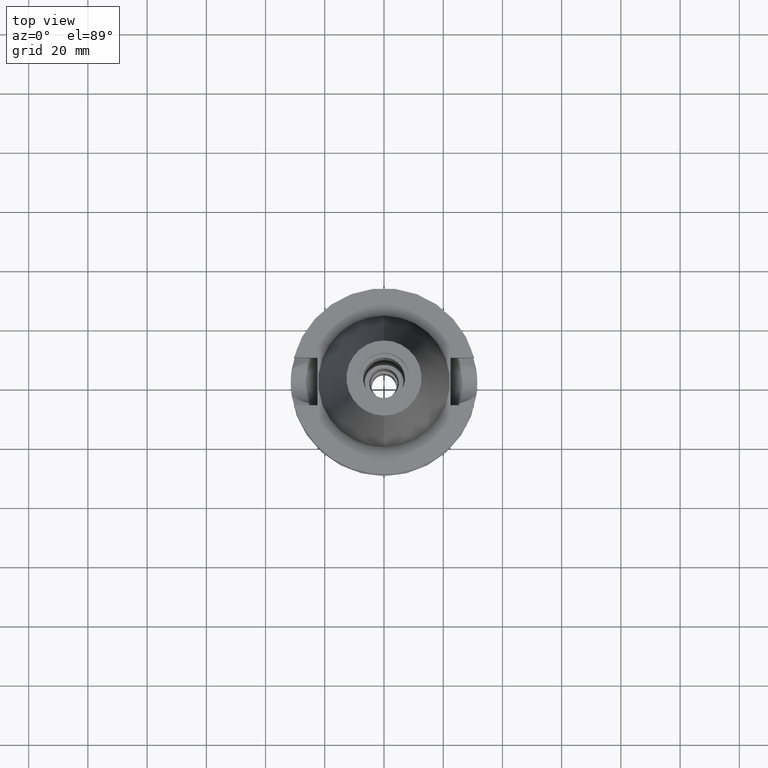
[diagram: clean part render]
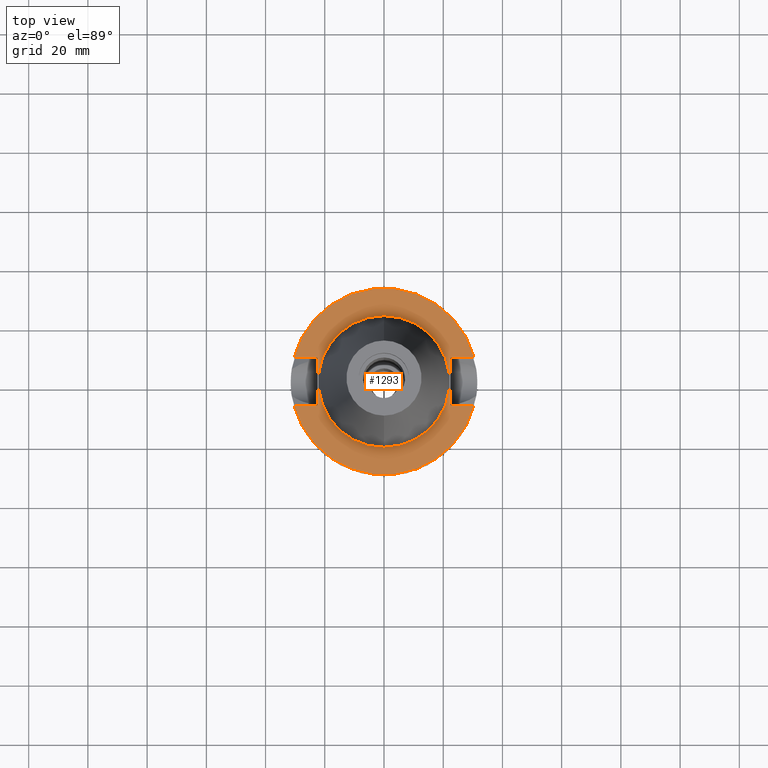
[diagram: same view with one face highlighted and labeled with its STEP entity id]
A machine part, top view. The second image highlights one B-rep face of the part: STEP entity #1293.
In plain terms, the highlighted planar face has unit normal (0, 0, -1).
Its self-contained STEP definition (entity closure, byte-faithful):
#74 = CARTESIAN_POINT ( 'NONE',  ( 30.45402272279000044, -8.050000000000000711, -1.000000000000000000 ) ) ;
#84 = DIRECTION ( 'NONE',  ( -1.000000000000000000, -3.550916904668000126E-14, 0.0000000000000000000 ) ) ;
#104 = ORIENTED_EDGE ( 'NONE', *, *, #813, .F. ) ;
#112 = VECTOR ( 'NONE', #84, 1000.000000000000000 ) ;
#217 = VECTOR ( 'NONE', #1384, 1000.000000000000000 ) ;
#222 = EDGE_CURVE ( 'NONE', #1713, #2828, #845, .T. ) ;
#296 = LINE ( 'NONE', #1276, #1499 ) ;
#337 = DIRECTION ( 'NONE',  ( 0.0000000000000000000, 0.0000000000000000000, -1.000000000000000000 ) ) ;
#346 = CARTESIAN_POINT ( 'NONE',  ( 30.45402272279000044, 8.050000000000000711, -1.000000000000000000 ) ) ;
#350 = FACE_OUTER_BOUND ( 'NONE', #1107, .T. ) ;
#358 = ORIENTED_EDGE ( 'NONE', *, *, #454, .T. ) ;
#375 = ORIENTED_EDGE ( 'NONE', *, *, #1545, .T. ) ;
#382 = DIRECTION ( 'NONE',  ( 0.0000000000000000000, 0.0000000000000000000, 1.000000000000000000 ) ) ;
#403 = CARTESIAN_POINT ( 'NONE',  ( -22.50000000000000000, -8.050000000000000711, -1.000000000000000000 ) ) ;
#445 = ORIENTED_EDGE ( 'NONE', *, *, #2164, .F. ) ;
#454 = EDGE_CURVE ( 'NONE', #3036, #1838, #296, .T. ) ;
#461 = DIRECTION ( 'NONE',  ( 0.0000000000000000000, 1.000000000000000000, 0.0000000000000000000 ) ) ;
#475 = EDGE_CURVE ( 'NONE', #2958, #3025, #2818, .T. ) ;
#562 = ORIENTED_EDGE ( 'NONE', *, *, #1919, .F. ) ;
#635 = CARTESIAN_POINT ( 'NONE',  ( 0.0000000000000000000, 2.162542550273999956E-14, -1.000000000000000000 ) ) ;
#692 = CARTESIAN_POINT ( 'NONE',  ( 0.0000000000000000000, 22.22500000000000142, -1.000000000000000000 ) ) ;
#785 = CIRCLE ( 'NONE', #1901, 22.22500000000000142 ) ;
#813 = EDGE_CURVE ( 'NONE', #2828, #2980, #2250, .T. ) ;
#845 = LINE ( 'NONE', #2777, #1752 ) ;
#851 = DIRECTION ( 'NONE',  ( 1.000000000000000000, -3.506251283225999947E-14, 0.0000000000000000000 ) ) ;
#884 = CARTESIAN_POINT ( 'NONE',  ( -22.50000000000000000, -8.050000000000000711, -1.000000000000000000 ) ) ;
#931 = DIRECTION ( 'NONE',  ( 0.0000000000000000000, -1.000000000000000000, 0.0000000000000000000 ) ) ;
#937 = AXIS2_PLACEMENT_3D ( 'NONE', #2304, #337, #1316 ) ;
#978 = CARTESIAN_POINT ( 'NONE',  ( 0.0000000000000000000, 2.162542550273999956E-14, -1.000000000000000000 ) ) ;
#1083 = CIRCLE ( 'NONE', #1453, 22.22500000000000142 ) ;
#1107 = EDGE_LOOP ( 'NONE', ( #375, #104, #1607, #2033, #358, #445, #2559, #2059 ) ) ;
#1108 = CARTESIAN_POINT ( 'NONE',  ( -30.45402272279000044, -8.050000000000000711, -1.000000000000000000 ) ) ;
#1140 = AXIS2_PLACEMENT_3D ( 'NONE', #635, #3073, #1865 ) ;
#1276 = CARTESIAN_POINT ( 'NONE',  ( 22.50000000000000000, 8.050000000000000711, -1.000000000000000000 ) ) ;
#1293 = ADVANCED_FACE ( 'NONE', ( #350, #2039 ), #1582, .F. ) ;
#1316 = DIRECTION ( 'NONE',  ( 0.0000000000000000000, -1.000000000000000000, 0.0000000000000000000 ) ) ;
#1384 = DIRECTION ( 'NONE',  ( -1.000000000000000000, 3.550916904668000126E-14, 0.0000000000000000000 ) ) ;
#1388 = DIRECTION ( 'NONE',  ( 0.0000000000000000000, 1.000000000000000000, 0.0000000000000000000 ) ) ;
#1403 = CARTESIAN_POINT ( 'NONE',  ( 22.50000000000000000, 8.050000000000000711, -1.000000000000000000 ) ) ;
#1442 = CARTESIAN_POINT ( 'NONE',  ( 22.50000000000000000, 8.050000000000000711, -1.000000000000000000 ) ) ;
#1453 = AXIS2_PLACEMENT_3D ( 'NONE', #1894, #382, #2827 ) ;
#1498 = AXIS2_PLACEMENT_3D ( 'NONE', #978, #2143, #461 ) ;
#1499 = VECTOR ( 'NONE', #851, 1000.000000000000000 ) ;
#1539 = VERTEX_POINT ( 'NONE', #692 ) ;
#1545 = EDGE_CURVE ( 'NONE', #2958, #2980, #2580, .T. ) ;
#1547 = CARTESIAN_POINT ( 'NONE',  ( -30.45402272279000044, 8.050000000000000711, -1.000000000000000000 ) ) ;
#1580 = DIRECTION ( 'NONE',  ( 1.000000000000000000, 3.573249715389999860E-14, 0.0000000000000000000 ) ) ;
#1582 = PLANE ( 'NONE',  #937 ) ;
#1607 = ORIENTED_EDGE ( 'NONE', *, *, #222, .F. ) ;
#1608 = ORIENTED_EDGE ( 'NONE', *, *, #2670, .F. ) ;
#1713 = VERTEX_POINT ( 'NONE', #2224 ) ;
#1752 = VECTOR ( 'NONE', #1580, 1000.000000000000000 ) ;
#1763 = EDGE_CURVE ( 'NONE', #3025, #1810, #1815, .T. ) ;
#1797 = VECTOR ( 'NONE', #1388, 1000.000000000000000 ) ;
#1810 = VERTEX_POINT ( 'NONE', #1547 ) ;
#1815 = LINE ( 'NONE', #2718, #112 ) ;
#1838 = VERTEX_POINT ( 'NONE', #346 ) ;
#1865 = DIRECTION ( 'NONE',  ( 0.0000000000000000000, -1.000000000000000000, 0.0000000000000000000 ) ) ;
#1894 = CARTESIAN_POINT ( 'NONE',  ( 0.0000000000000000000, 2.162542550273999956E-14, -1.000000000000000000 ) ) ;
#1901 = AXIS2_PLACEMENT_3D ( 'NONE', #2381, #3117, #931 ) ;
#1919 = EDGE_CURVE ( 'NONE', #1539, #2594, #1083, .T. ) ;
#2033 = ORIENTED_EDGE ( 'NONE', *, *, #2577, .F. ) ;
#2039 = FACE_BOUND ( 'NONE', #2737, .T. ) ;
#2059 = ORIENTED_EDGE ( 'NONE', *, *, #475, .F. ) ;
#2143 = DIRECTION ( 'NONE',  ( 0.0000000000000000000, 0.0000000000000000000, -1.000000000000000000 ) ) ;
#2164 = EDGE_CURVE ( 'NONE', #1810, #1838, #2502, .T. ) ;
#2170 = DIRECTION ( 'NONE',  ( 0.0000000000000000000, -1.000000000000000000, 0.0000000000000000000 ) ) ;
#2224 = CARTESIAN_POINT ( 'NONE',  ( 22.50000000000000000, -8.050000000000000711, -1.000000000000000000 ) ) ;
#2250 = CIRCLE ( 'NONE', #1140, 31.50000000000000000 ) ;
#2304 = CARTESIAN_POINT ( 'NONE',  ( 0.0000000000000000000, 1.212400331155999925E-14, -1.000000000000000000 ) ) ;
#2352 = VECTOR ( 'NONE', #2170, 1000.000000000000000 ) ;
#2358 = CARTESIAN_POINT ( 'NONE',  ( -22.50000000000000000, 8.050000000000000711, -1.000000000000000000 ) ) ;
#2381 = CARTESIAN_POINT ( 'NONE',  ( 0.0000000000000000000, 2.162542550273999956E-14, -1.000000000000000000 ) ) ;
#2392 = LINE ( 'NONE', #1442, #2352 ) ;
#2502 = CIRCLE ( 'NONE', #1498, 31.50000000000000000 ) ;
#2559 = ORIENTED_EDGE ( 'NONE', *, *, #1763, .F. ) ;
#2577 = EDGE_CURVE ( 'NONE', #3036, #1713, #2392, .T. ) ;
#2580 = LINE ( 'NONE', #3125, #217 ) ;
#2594 = VERTEX_POINT ( 'NONE', #2916 ) ;
#2670 = EDGE_CURVE ( 'NONE', #2594, #1539, #785, .T. ) ;
#2718 = CARTESIAN_POINT ( 'NONE',  ( -22.50000000000000000, 8.050000000000000711, -1.000000000000000000 ) ) ;
#2737 = EDGE_LOOP ( 'NONE', ( #562, #1608 ) ) ;
#2777 = CARTESIAN_POINT ( 'NONE',  ( 22.50000000000000000, -8.050000000000000711, -1.000000000000000000 ) ) ;
#2818 = LINE ( 'NONE', #884, #1797 ) ;
#2827 = DIRECTION ( 'NONE',  ( 0.0000000000000000000, 1.000000000000000000, 0.0000000000000000000 ) ) ;
#2828 = VERTEX_POINT ( 'NONE', #74 ) ;
#2916 = CARTESIAN_POINT ( 'NONE',  ( 0.0000000000000000000, -22.22500000000000142, -1.000000000000000000 ) ) ;
#2958 = VERTEX_POINT ( 'NONE', #403 ) ;
#2980 = VERTEX_POINT ( 'NONE', #1108 ) ;
#3025 = VERTEX_POINT ( 'NONE', #2358 ) ;
#3036 = VERTEX_POINT ( 'NONE', #1403 ) ;
#3073 = DIRECTION ( 'NONE',  ( 0.0000000000000000000, 0.0000000000000000000, -1.000000000000000000 ) ) ;
#3117 = DIRECTION ( 'NONE',  ( 0.0000000000000000000, 0.0000000000000000000, 1.000000000000000000 ) ) ;
#3125 = CARTESIAN_POINT ( 'NONE',  ( -22.50000000000000000, -8.050000000000000711, -1.000000000000000000 ) ) ;